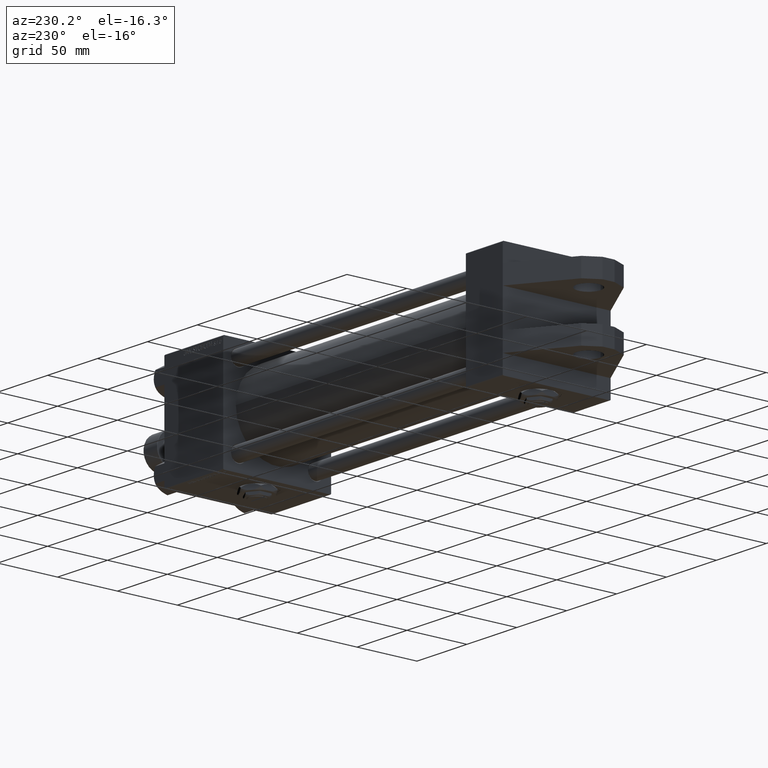
[diagram: clean part render]
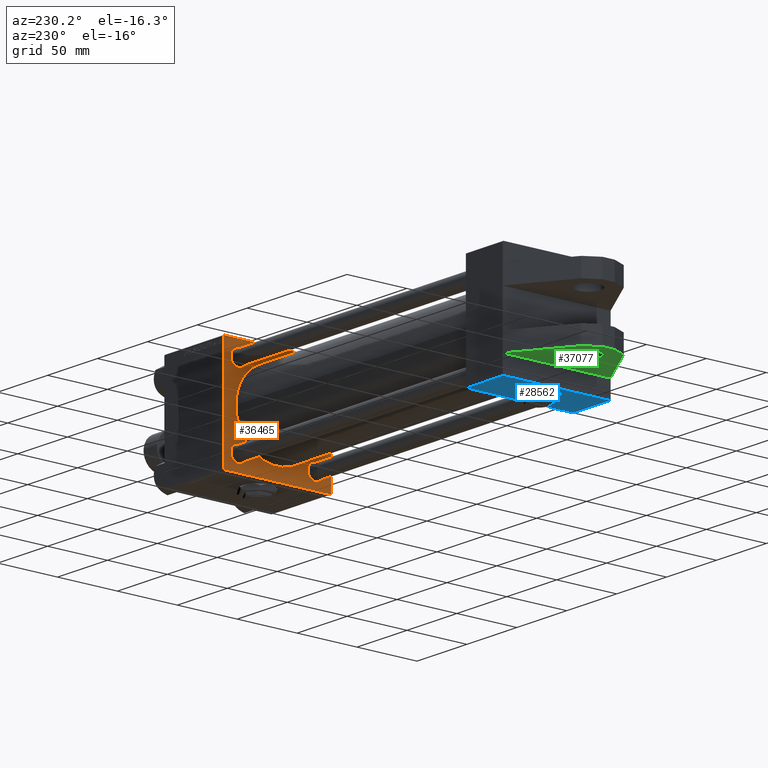
[diagram: same view with three faces highlighted in distinct colors, each labeled with its STEP entity id]
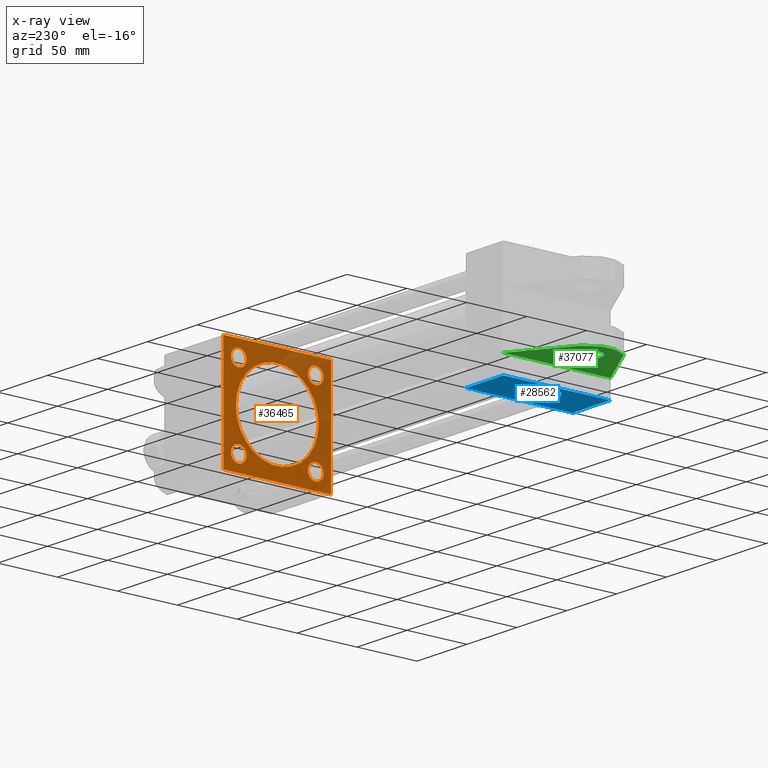
[diagram: x-ray of the same camera — body ghosted, the three highlighted faces saturated]
A machine part, auxiliary view with three faces highlighted in distinct colors.
The next image is the same camera in x-ray (body ghosted, the three faces saturated) — at least one of them is partly hidden behind the body in this view.
Their STEP definitions:

[orange] entity #36465 — the highlighted planar face has unit normal (-1, 0, -0).
#791 = DIRECTION ( 'NONE',  ( 0.000000000000000000, 0.000000000000000000, -1.000000000000000000 ) ) ;
#1135 = EDGE_LOOP ( 'NONE', ( #24275, #50370 ) ) ;
#1155 = ORIENTED_EDGE ( 'NONE', *, *, #47592, .F. ) ;
#1222 = CARTESIAN_POINT ( 'NONE',  ( 279.9999999999999432, 32.14999999999999147, -32.15000000000000568 ) ) ;
#1411 = ORIENTED_EDGE ( 'NONE', *, *, #21410, .T. ) ;
#2640 = FACE_BOUND ( 'NONE', #32008, .T. ) ;
#2700 = DIRECTION ( 'NONE',  ( 1.000000000000000000, 0.000000000000000000, 0.000000000000000000 ) ) ;
#2791 = ORIENTED_EDGE ( 'NONE', *, *, #5754, .T. ) ;
#3052 = ORIENTED_EDGE ( 'NONE', *, *, #34088, .F. ) ;
#3738 = EDGE_CURVE ( 'NONE', #31636, #42507, #24952, .T. ) ;
#3739 = VERTEX_POINT ( 'NONE', #10886 ) ;
#4120 = VECTOR ( 'NONE', #46829, 1000.000000000000114 ) ;
#4992 = DIRECTION ( 'NONE',  ( 1.000000000000000000, 0.000000000000000000, 0.000000000000000000 ) ) ;
#5023 = EDGE_CURVE ( 'NONE', #12674, #17136, #25023, .T. ) ;
#5448 = CARTESIAN_POINT ( 'NONE',  ( 279.9999999999999432, -32.14999999999999147, 38.64999999999994174 ) ) ;
#5754 = EDGE_CURVE ( 'NONE', #25821, #25699, #9710, .T. ) ;
#6375 = VERTEX_POINT ( 'NONE', #52237 ) ;
#6597 = FACE_BOUND ( 'NONE', #38505, .T. ) ;
#7787 = EDGE_CURVE ( 'NONE', #17136, #26427, #24337, .T. ) ;
#8275 = LINE ( 'NONE', #45260, #49695 ) ;
#8710 = AXIS2_PLACEMENT_3D ( 'NONE', #10437, #34735, #23086 ) ;
#8729 = CARTESIAN_POINT ( 'NONE',  ( 279.9999999999999432, -3.469446951953614189E-15, 0.000000000000000000 ) ) ;
#9659 = ORIENTED_EDGE ( 'NONE', *, *, #43957, .T. ) ;
#9710 = CIRCLE ( 'NONE', #31656, 6.499999999999895195 ) ;
#10013 = EDGE_LOOP ( 'NONE', ( #2791, #28618 ) ) ;
#10066 = CIRCLE ( 'NONE', #10933, 34.49999999999999289 ) ;
#10098 = CARTESIAN_POINT ( 'NONE',  ( 279.9999999999999432, -44.74999999999968736, -44.75000000000031264 ) ) ;
#10437 = CARTESIAN_POINT ( 'NONE',  ( 279.9999999999999432, 32.14999999999999147, 32.15000000000000568 ) ) ;
#10470 = EDGE_CURVE ( 'NONE', #25699, #25821, #35201, .T. ) ;
#10573 = DIRECTION ( 'NONE',  ( -1.000000000000000000, 0.000000000000000000, -0.000000000000000000 ) ) ;
#10602 = CIRCLE ( 'NONE', #29950, 6.499999999999888090 ) ;
#10886 = CARTESIAN_POINT ( 'NONE',  ( 279.9999999999999432, -44.99999999999999289, -44.49999999999997158 ) ) ;
#10933 = AXIS2_PLACEMENT_3D ( 'NONE', #8729, #13473, #791 ) ;
#10939 = EDGE_CURVE ( 'NONE', #30506, #13828, #51254, .T. ) ;
#11446 = DIRECTION ( 'NONE',  ( 0.000000000000000000, -1.000000000000000000, 0.000000000000000000 ) ) ;
#11507 = EDGE_LOOP ( 'NONE', ( #9659, #1411, #1155, #22121, #3052, #40864, #42738, #30978 ) ) ;
#11762 = VERTEX_POINT ( 'NONE', #31645 ) ;
#12674 = VERTEX_POINT ( 'NONE', #32947 ) ;
#12719 = CARTESIAN_POINT ( 'NONE',  ( 279.9999999999999432, -32.15000000000001279, -32.15000000000000568 ) ) ;
#12820 = CARTESIAN_POINT ( 'NONE',  ( 279.9999999999999432, -32.14999999999999147, 25.65000000000004121 ) ) ;
#12899 = CARTESIAN_POINT ( 'NONE',  ( 279.9999999999999432, 44.74999999999997158, 44.74999999999997158 ) ) ;
#13380 = LINE ( 'NONE', #45360, #18926 ) ;
#13473 = DIRECTION ( 'NONE',  ( 1.000000000000000000, 0.000000000000000000, 0.000000000000000000 ) ) ;
#13526 = CARTESIAN_POINT ( 'NONE',  ( 279.9999999999999432, 45.00000000000001421, 44.49999999999994316 ) ) ;
#13642 = DIRECTION ( 'NONE',  ( 0.000000000000000000, 0.000000000000000000, 1.000000000000000000 ) ) ;
#13828 = VERTEX_POINT ( 'NONE', #12820 ) ;
#14120 = AXIS2_PLACEMENT_3D ( 'NONE', #25507, #33716, #13642 ) ;
#14791 = PLANE ( 'NONE',  #37546 ) ;
#15049 = FACE_BOUND ( 'NONE', #35346, .T. ) ;
#15557 = CARTESIAN_POINT ( 'NONE',  ( 279.9999999999999432, -32.15000000000001279, -38.64999999999989910 ) ) ;
#15944 = CARTESIAN_POINT ( 'NONE',  ( 279.9999999999999432, 32.14999999999999147, -25.65000000000011582 ) ) ;
#16527 = AXIS2_PLACEMENT_3D ( 'NONE', #19331, #35452, #18298 ) ;
#16627 = DIRECTION ( 'NONE',  ( 0.000000000000000000, 0.000000000000000000, 1.000000000000000000 ) ) ;
#17136 = VERTEX_POINT ( 'NONE', #13526 ) ;
#17208 = CARTESIAN_POINT ( 'NONE',  ( 279.9999999999999432, 45.00000000000001421, 45.00000000000000000 ) ) ;
#17428 = EDGE_CURVE ( 'NONE', #47007, #23571, #52277, .T. ) ;
#18298 = DIRECTION ( 'NONE',  ( 0.000000000000000000, 0.000000000000000000, 1.000000000000000000 ) ) ;
#18926 = VECTOR ( 'NONE', #37416, 1000.000000000000000 ) ;
#19331 = CARTESIAN_POINT ( 'NONE',  ( 279.9999999999999432, 32.14999999999999147, 32.15000000000000568 ) ) ;
#20281 = DIRECTION ( 'NONE',  ( -0.000000000000000000, 0.7071067811865474617, 0.7071067811865474617 ) ) ;
#20832 = AXIS2_PLACEMENT_3D ( 'NONE', #25894, #30398, #46542 ) ;
#21410 = EDGE_CURVE ( 'NONE', #6375, #3739, #42586, .T. ) ;
#21687 = AXIS2_PLACEMENT_3D ( 'NONE', #32734, #4992, #16627 ) ;
#22121 = ORIENTED_EDGE ( 'NONE', *, *, #17428, .T. ) ;
#22528 = VECTOR ( 'NONE', #11446, 1000.000000000000000 ) ;
#22704 = FACE_BOUND ( 'NONE', #10013, .T. ) ;
#23086 = DIRECTION ( 'NONE',  ( 0.000000000000000000, 0.000000000000000000, 1.000000000000000000 ) ) ;
#23287 = CARTESIAN_POINT ( 'NONE',  ( 279.9999999999999432, 44.75000000000000000, -44.75000000000000000 ) ) ;
#23362 = CIRCLE ( 'NONE', #20832, 6.499999999999950262 ) ;
#23571 = VERTEX_POINT ( 'NONE', #44655 ) ;
#24086 = LINE ( 'NONE', #36256, #22528 ) ;
#24215 = AXIS2_PLACEMENT_3D ( 'NONE', #29485, #46162, #46426 ) ;
#24275 = ORIENTED_EDGE ( 'NONE', *, *, #48880, .T. ) ;
#24337 = LINE ( 'NONE', #17208, #49463 ) ;
#24826 = CARTESIAN_POINT ( 'NONE',  ( 279.9999999999999432, 7.555845051047534515E-16, -34.49999999999999289 ) ) ;
#24839 = DIRECTION ( 'NONE',  ( 0.000000000000000000, 0.000000000000000000, 1.000000000000000000 ) ) ;
#24952 = CIRCLE ( 'NONE', #16527, 6.499999999999950262 ) ;
#25023 = LINE ( 'NONE', #12899, #51060 ) ;
#25110 = DIRECTION ( 'NONE',  ( 0.000000000000000000, 0.000000000000000000, -1.000000000000000000 ) ) ;
#25507 = CARTESIAN_POINT ( 'NONE',  ( 279.9999999999999432, -32.14999999999999147, 32.14999999999999147 ) ) ;
#25699 = VERTEX_POINT ( 'NONE', #15557 ) ;
#25821 = VERTEX_POINT ( 'NONE', #35049 ) ;
#25894 = CARTESIAN_POINT ( 'NONE',  ( 279.9999999999999432, -32.14999999999999147, 32.14999999999999147 ) ) ;
#26375 = CIRCLE ( 'NONE', #8710, 6.499999999999950262 ) ;
#26427 = VERTEX_POINT ( 'NONE', #30623 ) ;
#27569 = AXIS2_PLACEMENT_3D ( 'NONE', #1222, #50837, #30727 ) ;
#27762 = ORIENTED_EDGE ( 'NONE', *, *, #30962, .T. ) ;
#28618 = ORIENTED_EDGE ( 'NONE', *, *, #10470, .T. ) ;
#29485 = CARTESIAN_POINT ( 'NONE',  ( 279.9999999999999432, -3.469446951953614189E-15, 0.000000000000000000 ) ) ;
#29950 = AXIS2_PLACEMENT_3D ( 'NONE', #51062, #2700, #35191 ) ;
#30398 = DIRECTION ( 'NONE',  ( 1.000000000000000000, 0.000000000000000000, 0.000000000000000000 ) ) ;
#30506 = VERTEX_POINT ( 'NONE', #5448 ) ;
#30623 = CARTESIAN_POINT ( 'NONE',  ( 279.9999999999999432, 45.00000000000001421, -44.49999999999997158 ) ) ;
#30727 = DIRECTION ( 'NONE',  ( 0.000000000000000000, 0.000000000000000000, 1.000000000000000000 ) ) ;
#30962 = EDGE_CURVE ( 'NONE', #42507, #31636, #26375, .T. ) ;
#30978 = ORIENTED_EDGE ( 'NONE', *, *, #47831, .T. ) ;
#31219 = LINE ( 'NONE', #23287, #4120 ) ;
#31416 = CARTESIAN_POINT ( 'NONE',  ( 279.9999999999999432, 0.000000000000000000, 0.000000000000000000 ) ) ;
#31489 = VERTEX_POINT ( 'NONE', #24826 ) ;
#31636 = VERTEX_POINT ( 'NONE', #42289 ) ;
#31645 = CARTESIAN_POINT ( 'NONE',  ( 279.9999999999999432, 32.14999999999999147, -38.64999999999989200 ) ) ;
#31656 = AXIS2_PLACEMENT_3D ( 'NONE', #12719, #32789, #24839 ) ;
#32008 = EDGE_LOOP ( 'NONE', ( #32979, #47281 ) ) ;
#32177 = CARTESIAN_POINT ( 'NONE',  ( 279.9999999999999432, -44.75000000000001421, 44.75000000000001421 ) ) ;
#32734 = CARTESIAN_POINT ( 'NONE',  ( 279.9999999999999432, -32.15000000000001279, -32.15000000000000568 ) ) ;
#32789 = DIRECTION ( 'NONE',  ( 1.000000000000000000, 0.000000000000000000, 0.000000000000000000 ) ) ;
#32947 = CARTESIAN_POINT ( 'NONE',  ( 279.9999999999999432, 44.49999999999995737, 45.00000000000000000 ) ) ;
#32979 = ORIENTED_EDGE ( 'NONE', *, *, #36230, .T. ) ;
#33716 = DIRECTION ( 'NONE',  ( 1.000000000000000000, 0.000000000000000000, 0.000000000000000000 ) ) ;
#34088 = EDGE_CURVE ( 'NONE', #12674, #23571, #13380, .T. ) ;
#34735 = DIRECTION ( 'NONE',  ( 1.000000000000000000, 0.000000000000000000, 0.000000000000000000 ) ) ;
#35049 = CARTESIAN_POINT ( 'NONE',  ( 279.9999999999999432, -32.15000000000001279, -25.65000000000010871 ) ) ;
#35191 = DIRECTION ( 'NONE',  ( 0.000000000000000000, 0.000000000000000000, 1.000000000000000000 ) ) ;
#35201 = CIRCLE ( 'NONE', #21687, 6.499999999999895195 ) ;
#35346 = EDGE_LOOP ( 'NONE', ( #50887, #52251 ) ) ;
#35452 = DIRECTION ( 'NONE',  ( 1.000000000000000000, 0.000000000000000000, 0.000000000000000000 ) ) ;
#36230 = EDGE_CURVE ( 'NONE', #48589, #11762, #10602, .T. ) ;
#36256 = CARTESIAN_POINT ( 'NONE',  ( 279.9999999999999432, 45.00000000000001421, -45.00000000000000000 ) ) ;
#36465 = ADVANCED_FACE ( 'NONE', ( #15049, #6597, #2640, #22704, #50997, #51780 ), #14791, .T. ) ;
#36861 = CIRCLE ( 'NONE', #27569, 6.499999999999888090 ) ;
#37046 = CARTESIAN_POINT ( 'NONE',  ( 279.9999999999999432, -3.469446951953614189E-15, 34.49999999999999289 ) ) ;
#37316 = DIRECTION ( 'NONE',  ( 0.000000000000000000, 7.709882115452478166E-17, -1.000000000000000000 ) ) ;
#37416 = DIRECTION ( 'NONE',  ( 0.000000000000000000, -1.000000000000000000, -1.541976423090495140E-16 ) ) ;
#37546 = AXIS2_PLACEMENT_3D ( 'NONE', #31416, #10573, #38827 ) ;
#37950 = ORIENTED_EDGE ( 'NONE', *, *, #3738, .T. ) ;
#38505 = EDGE_LOOP ( 'NONE', ( #37950, #27762 ) ) ;
#38827 = DIRECTION ( 'NONE',  ( -0.000000000000000000, 0.000000000000000000, 1.000000000000000000 ) ) ;
#40864 = ORIENTED_EDGE ( 'NONE', *, *, #5023, .T. ) ;
#42289 = CARTESIAN_POINT ( 'NONE',  ( 279.9999999999999432, 32.14999999999999147, 38.64999999999995595 ) ) ;
#42507 = VERTEX_POINT ( 'NONE', #44309 ) ;
#42586 = LINE ( 'NONE', #10098, #45574 ) ;
#42738 = ORIENTED_EDGE ( 'NONE', *, *, #7787, .T. ) ;
#42842 = CIRCLE ( 'NONE', #24215, 34.49999999999999289 ) ;
#43260 = EDGE_CURVE ( 'NONE', #13828, #30506, #23362, .T. ) ;
#43832 = EDGE_CURVE ( 'NONE', #11762, #48589, #36861, .T. ) ;
#43957 = EDGE_CURVE ( 'NONE', #52041, #6375, #24086, .T. ) ;
#44309 = CARTESIAN_POINT ( 'NONE',  ( 279.9999999999999432, 32.14999999999999147, 25.65000000000005542 ) ) ;
#44655 = CARTESIAN_POINT ( 'NONE',  ( 279.9999999999999432, -44.50000000000002842, 44.99999999999998579 ) ) ;
#44729 = EDGE_CURVE ( 'NONE', #31489, #50751, #42842, .T. ) ;
#45141 = DIRECTION ( 'NONE',  ( 0.000000000000000000, 0.7071067811865474617, -0.7071067811865474617 ) ) ;
#45260 = CARTESIAN_POINT ( 'NONE',  ( 279.9999999999999432, -45.00000000000000000, 44.99999999999998579 ) ) ;
#45360 = CARTESIAN_POINT ( 'NONE',  ( 279.9999999999999432, 45.00000000000001421, 45.00000000000000000 ) ) ;
#45574 = VECTOR ( 'NONE', #51042, 999.9999999999998863 ) ;
#46162 = DIRECTION ( 'NONE',  ( 1.000000000000000000, 0.000000000000000000, 0.000000000000000000 ) ) ;
#46426 = DIRECTION ( 'NONE',  ( 0.000000000000000000, 0.000000000000000000, -1.000000000000000000 ) ) ;
#46542 = DIRECTION ( 'NONE',  ( 0.000000000000000000, 0.000000000000000000, 1.000000000000000000 ) ) ;
#46829 = DIRECTION ( 'NONE',  ( -0.000000000000000000, -0.7071067811865474617, -0.7071067811865474617 ) ) ;
#47007 = VERTEX_POINT ( 'NONE', #50202 ) ;
#47281 = ORIENTED_EDGE ( 'NONE', *, *, #43832, .T. ) ;
#47592 = EDGE_CURVE ( 'NONE', #47007, #3739, #8275, .T. ) ;
#47831 = EDGE_CURVE ( 'NONE', #26427, #52041, #31219, .T. ) ;
#48589 = VERTEX_POINT ( 'NONE', #15944 ) ;
#48880 = EDGE_CURVE ( 'NONE', #50751, #31489, #10066, .T. ) ;
#49463 = VECTOR ( 'NONE', #25110, 1000.000000000000000 ) ;
#49695 = VECTOR ( 'NONE', #37316, 1000.000000000000000 ) ;
#50202 = CARTESIAN_POINT ( 'NONE',  ( 279.9999999999999432, -45.00000000000000000, 44.50000000000004263 ) ) ;
#50370 = ORIENTED_EDGE ( 'NONE', *, *, #44729, .T. ) ;
#50751 = VERTEX_POINT ( 'NONE', #37046 ) ;
#50837 = DIRECTION ( 'NONE',  ( 1.000000000000000000, 0.000000000000000000, 0.000000000000000000 ) ) ;
#50887 = ORIENTED_EDGE ( 'NONE', *, *, #10939, .T. ) ;
#50933 = CARTESIAN_POINT ( 'NONE',  ( 279.9999999999999432, 44.50000000000001421, -45.00000000000000000 ) ) ;
#50997 = FACE_BOUND ( 'NONE', #1135, .T. ) ;
#51042 = DIRECTION ( 'NONE',  ( 0.000000000000000000, -0.7071067811865525687, 0.7071067811865425767 ) ) ;
#51060 = VECTOR ( 'NONE', #45141, 1000.000000000000114 ) ;
#51062 = CARTESIAN_POINT ( 'NONE',  ( 279.9999999999999432, 32.14999999999999147, -32.15000000000000568 ) ) ;
#51254 = CIRCLE ( 'NONE', #14120, 6.499999999999950262 ) ;
#51516 = VECTOR ( 'NONE', #20281, 1000.000000000000114 ) ;
#51780 = FACE_OUTER_BOUND ( 'NONE', #11507, .T. ) ;
#52041 = VERTEX_POINT ( 'NONE', #50933 ) ;
#52237 = CARTESIAN_POINT ( 'NONE',  ( 279.9999999999999432, -44.49999999999995737, -45.00000000000000000 ) ) ;
#52251 = ORIENTED_EDGE ( 'NONE', *, *, #43260, .T. ) ;
#52277 = LINE ( 'NONE', #32177, #51516 ) ;

[blue] entity #28562 — the highlighted planar face has unit normal (0, 0, -1).
#249 = DIRECTION ( 'NONE',  ( 0.000000000000000000, 0.000000000000000000, -1.000000000000000000 ) ) ;
#644 = ORIENTED_EDGE ( 'NONE', *, *, #11660, .F. ) ;
#1897 = CARTESIAN_POINT ( 'NONE',  ( 37.00000000000000000, 44.99999999999998579, 44.50000000000001421 ) ) ;
#5578 = VECTOR ( 'NONE', #36911, 1000.000000000000000 ) ;
#5884 = ORIENTED_EDGE ( 'NONE', *, *, #35574, .T. ) ;
#6780 = FACE_OUTER_BOUND ( 'NONE', #37752, .T. ) ;
#7124 = CARTESIAN_POINT ( 'NONE',  ( 18.50000000000000000, 44.99999999999998579, 0.000000000000000000 ) ) ;
#7385 = CARTESIAN_POINT ( 'NONE',  ( 0.000000000000000000, 44.99999999999998579, 44.50000000000001421 ) ) ;
#7929 = LINE ( 'NONE', #36450, #12445 ) ;
#8483 = EDGE_CURVE ( 'NONE', #30670, #37346, #24221, .T. ) ;
#8633 = AXIS2_PLACEMENT_3D ( 'NONE', #42984, #50911, #14707 ) ;
#9048 = CARTESIAN_POINT ( 'NONE',  ( 37.00000000000000000, 44.99999999999998579, 44.50000000000001421 ) ) ;
#10746 = PLANE ( 'NONE',  #8633 ) ;
#11348 = DIRECTION ( 'NONE',  ( 0.000000000000000000, 0.000000000000000000, 1.000000000000000000 ) ) ;
#11660 = EDGE_CURVE ( 'NONE', #28869, #19278, #31011, .T. ) ;
#12296 = EDGE_CURVE ( 'NONE', #36567, #37346, #7929, .T. ) ;
#12445 = VECTOR ( 'NONE', #249, 1000.000000000000000 ) ;
#14707 = DIRECTION ( 'NONE',  ( 0.000000000000000000, -0.000000000000000000, 1.000000000000000000 ) ) ;
#17421 = ORIENTED_EDGE ( 'NONE', *, *, #36573, .F. ) ;
#19278 = VERTEX_POINT ( 'NONE', #32771 ) ;
#20526 = EDGE_CURVE ( 'NONE', #48707, #30670, #31454, .T. ) ;
#21151 = CARTESIAN_POINT ( 'NONE',  ( 0.000000000000000000, 44.99999999999998579, -44.49999999999995737 ) ) ;
#21799 = ORIENTED_EDGE ( 'NONE', *, *, #8483, .T. ) ;
#22628 = CARTESIAN_POINT ( 'NONE',  ( 37.00000000000000000, 44.99999999999998579, -44.49999999999995737 ) ) ;
#22770 = VECTOR ( 'NONE', #47338, 1000.000000000000000 ) ;
#23521 = CARTESIAN_POINT ( 'NONE',  ( 37.00000000000000000, 44.99999999999998579, 45.00000000000001421 ) ) ;
#24221 = LINE ( 'NONE', #40869, #5578 ) ;
#26232 = EDGE_LOOP ( 'NONE', ( #17421, #644 ) ) ;
#26505 = CARTESIAN_POINT ( 'NONE',  ( 18.50000000000000355, 44.99999999999998579, -15.00000000000000178 ) ) ;
#27437 = DIRECTION ( 'NONE',  ( 0.000000000000000000, 1.000000000000000000, 0.000000000000000000 ) ) ;
#27910 = ORIENTED_EDGE ( 'NONE', *, *, #20526, .T. ) ;
#28205 = DIRECTION ( 'NONE',  ( 0.000000000000000000, 1.000000000000000000, 0.000000000000000000 ) ) ;
#28562 = ADVANCED_FACE ( 'NONE', ( #47475, #6780 ), #10746, .T. ) ;
#28869 = VERTEX_POINT ( 'NONE', #26505 ) ;
#30670 = VERTEX_POINT ( 'NONE', #22628 ) ;
#31011 = CIRCLE ( 'NONE', #43706, 15.00000000000000178 ) ;
#31454 = LINE ( 'NONE', #23521, #22770 ) ;
#32194 = CARTESIAN_POINT ( 'NONE',  ( 18.50000000000000000, 44.99999999999998579, 0.000000000000000000 ) ) ;
#32771 = CARTESIAN_POINT ( 'NONE',  ( 18.50000000000000000, 44.99999999999998579, 15.00000000000000178 ) ) ;
#35574 = EDGE_CURVE ( 'NONE', #36567, #48707, #45244, .T. ) ;
#36450 = CARTESIAN_POINT ( 'NONE',  ( 0.000000000000000000, 44.99999999999998579, 45.00000000000001421 ) ) ;
#36567 = VERTEX_POINT ( 'NONE', #7385 ) ;
#36573 = EDGE_CURVE ( 'NONE', #19278, #28869, #38297, .T. ) ;
#36911 = DIRECTION ( 'NONE',  ( -1.000000000000000000, 0.000000000000000000, 0.000000000000000000 ) ) ;
#37346 = VERTEX_POINT ( 'NONE', #21151 ) ;
#37752 = EDGE_LOOP ( 'NONE', ( #27910, #21799, #50896, #5884 ) ) ;
#38297 = CIRCLE ( 'NONE', #41694, 15.00000000000000178 ) ;
#39082 = DIRECTION ( 'NONE',  ( 0.000000000000000000, 0.000000000000000000, 1.000000000000000000 ) ) ;
#40869 = CARTESIAN_POINT ( 'NONE',  ( 37.00000000000000000, 44.99999999999998579, -44.49999999999998579 ) ) ;
#41694 = AXIS2_PLACEMENT_3D ( 'NONE', #7124, #27437, #39082 ) ;
#42984 = CARTESIAN_POINT ( 'NONE',  ( 37.00000000000000000, 44.99999999999998579, 45.00000000000001421 ) ) ;
#43706 = AXIS2_PLACEMENT_3D ( 'NONE', #32194, #28205, #11348 ) ;
#45244 = LINE ( 'NONE', #9048, #51946 ) ;
#47077 = DIRECTION ( 'NONE',  ( 1.000000000000000000, 0.000000000000000000, 0.000000000000000000 ) ) ;
#47338 = DIRECTION ( 'NONE',  ( 0.000000000000000000, 0.000000000000000000, -1.000000000000000000 ) ) ;
#47475 = FACE_BOUND ( 'NONE', #26232, .T. ) ;
#48707 = VERTEX_POINT ( 'NONE', #1897 ) ;
#50896 = ORIENTED_EDGE ( 'NONE', *, *, #12296, .F. ) ;
#50911 = DIRECTION ( 'NONE',  ( -0.000000000000000000, 1.000000000000000000, 0.000000000000000000 ) ) ;
#51946 = VECTOR ( 'NONE', #47077, 1000.000000000000000 ) ;

[green] entity #37077 — the highlighted planar face has unit normal (0, 0, -1).
#63 = ORIENTED_EDGE ( 'NONE', *, *, #34199, .T. ) ;
#118 = DIRECTION ( 'NONE',  ( -0.4226182617406930020, -0.000000000000000000, 0.9063077870366529343 ) ) ;
#1165 = CARTESIAN_POINT ( 'NONE',  ( 0.000000000000000000, 30.00000000000000355, 45.00000000000001421 ) ) ;
#1921 = DIRECTION ( 'NONE',  ( 0.8478744008358545248, 0.000000000000000000, 0.5301971335335947666 ) ) ;
#2551 = DIRECTION ( 'NONE',  ( -0.8595155407125480984, -0.000000000000000000, 0.5111096117992853793 ) ) ;
#2614 = VERTEX_POINT ( 'NONE', #22332 ) ;
#2671 = LINE ( 'NONE', #2930, #31692 ) ;
#2930 = CARTESIAN_POINT ( 'NONE',  ( -52.00000000000000711, 30.00000000000000000, 5.000000000000000000 ) ) ;
#3273 = EDGE_CURVE ( 'NONE', #7492, #51360, #2671, .T. ) ;
#4086 = CARTESIAN_POINT ( 'NONE',  ( -52.00000000000000711, 30.00000000000000000, -5.000000000000000000 ) ) ;
#4793 = VERTEX_POINT ( 'NONE', #41033 ) ;
#5443 = ORIENTED_EDGE ( 'NONE', *, *, #12789, .T. ) ;
#5609 = FACE_OUTER_BOUND ( 'NONE', #12474, .T. ) ;
#5840 = ORIENTED_EDGE ( 'NONE', *, *, #3273, .T. ) ;
#5882 = CARTESIAN_POINT ( 'NONE',  ( -44.91602078046192048, 30.00000000000000000, 16.91288539427591431 ) ) ;
#7492 = VERTEX_POINT ( 'NONE', #44257 ) ;
#8302 = VECTOR ( 'NONE', #2551, 999.9999999999998863 ) ;
#9272 = EDGE_LOOP ( 'NONE', ( #10530, #29959 ) ) ;
#10530 = ORIENTED_EDGE ( 'NONE', *, *, #37290, .F. ) ;
#11657 = CARTESIAN_POINT ( 'NONE',  ( -32.00000000000000000, 30.00000000000000000, -10.00000000000000000 ) ) ;
#11927 = DIRECTION ( 'NONE',  ( 0.000000000000000000, -0.000000000000000000, 1.000000000000000000 ) ) ;
#12474 = EDGE_LOOP ( 'NONE', ( #5840, #30128, #29346, #5443, #63, #38522 ) ) ;
#12789 = EDGE_CURVE ( 'NONE', #2614, #35990, #42716, .T. ) ;
#13807 = FACE_BOUND ( 'NONE', #9272, .T. ) ;
#14318 = VERTEX_POINT ( 'NONE', #11657 ) ;
#14914 = LINE ( 'NONE', #31015, #48875 ) ;
#14927 = AXIS2_PLACEMENT_3D ( 'NONE', #24329, #43677, #23829 ) ;
#14966 = CARTESIAN_POINT ( 'NONE',  ( -46.14251089227400371, 30.00000000000000000, -17.56142592832800631 ) ) ;
#15950 = EDGE_CURVE ( 'NONE', #4793, #7492, #43022, .T. ) ;
#16150 = DIRECTION ( 'NONE',  ( 0.000000000000000000, 0.000000000000000000, 1.000000000000000000 ) ) ;
#16170 = VERTEX_POINT ( 'NONE', #21550 ) ;
#16386 = AXIS2_PLACEMENT_3D ( 'NONE', #17778, #50019, #11927 ) ;
#17778 = CARTESIAN_POINT ( 'NONE',  ( 0.000000000000000000, 30.00000000000000000, 0.000000000000000000 ) ) ;
#18447 = DIRECTION ( 'NONE',  ( 0.000000000000000000, 0.000000000000000000, 1.000000000000000000 ) ) ;
#20012 = CIRCLE ( 'NONE', #14927, 10.00000000000000000 ) ;
#21550 = CARTESIAN_POINT ( 'NONE',  ( -32.00000000000000000, 30.00000000000000000, 10.00000000000000000 ) ) ;
#21728 = PLANE ( 'NONE',  #16386 ) ;
#22332 = CARTESIAN_POINT ( 'NONE',  ( 0.000000000000000000, 30.00000000000000000, -45.00000000000000000 ) ) ;
#23829 = DIRECTION ( 'NONE',  ( 0.000000000000000000, 0.000000000000000000, 1.000000000000000000 ) ) ;
#24329 = CARTESIAN_POINT ( 'NONE',  ( -32.00000000000000000, 30.00000000000000000, 0.000000000000000000 ) ) ;
#29346 = ORIENTED_EDGE ( 'NONE', *, *, #48515, .T. ) ;
#29864 = AXIS2_PLACEMENT_3D ( 'NONE', #32255, #32778, #16150 ) ;
#29959 = ORIENTED_EDGE ( 'NONE', *, *, #43043, .F. ) ;
#30128 = ORIENTED_EDGE ( 'NONE', *, *, #40699, .T. ) ;
#31015 = CARTESIAN_POINT ( 'NONE',  ( 0.000000000000000000, 30.00000000000000000, 45.00000000000000000 ) ) ;
#31692 = VECTOR ( 'NONE', #51297, 999.9999999999998863 ) ;
#32255 = CARTESIAN_POINT ( 'NONE',  ( -32.00000000000000000, 30.00000000000000000, 0.000000000000000000 ) ) ;
#32778 = DIRECTION ( 'NONE',  ( 0.000000000000000000, 1.000000000000000000, 0.000000000000000000 ) ) ;
#34199 = EDGE_CURVE ( 'NONE', #35990, #4793, #40278, .T. ) ;
#34225 = VECTOR ( 'NONE', #1921, 1000.000000000000114 ) ;
#35990 = VERTEX_POINT ( 'NONE', #43309 ) ;
#36644 = VECTOR ( 'NONE', #118, 1000.000000000000227 ) ;
#37077 = ADVANCED_FACE ( 'NONE', ( #5609, #13807 ), #21728, .T. ) ;
#37290 = EDGE_CURVE ( 'NONE', #14318, #16170, #45061, .T. ) ;
#38522 = ORIENTED_EDGE ( 'NONE', *, *, #15950, .T. ) ;
#39466 = DIRECTION ( 'NONE',  ( 0.000000000000000000, 0.000000000000000000, -1.000000000000000000 ) ) ;
#40278 = LINE ( 'NONE', #4086, #36644 ) ;
#40699 = EDGE_CURVE ( 'NONE', #51360, #45510, #42096, .T. ) ;
#41033 = CARTESIAN_POINT ( 'NONE',  ( -52.00000000000000711, 30.00000000000000000, -5.000000000000000000 ) ) ;
#42096 = LINE ( 'NONE', #5882, #34225 ) ;
#42716 = LINE ( 'NONE', #14966, #8302 ) ;
#43022 = LINE ( 'NONE', #47507, #51398 ) ;
#43043 = EDGE_CURVE ( 'NONE', #16170, #14318, #20012, .T. ) ;
#43309 = CARTESIAN_POINT ( 'NONE',  ( -46.14251089227400371, 30.00000000000000000, -17.56142592832800631 ) ) ;
#43677 = DIRECTION ( 'NONE',  ( 0.000000000000000000, 1.000000000000000000, 0.000000000000000000 ) ) ;
#44257 = CARTESIAN_POINT ( 'NONE',  ( -52.00000000000000711, 30.00000000000000000, 5.000000000000000000 ) ) ;
#45061 = CIRCLE ( 'NONE', #29864, 10.00000000000000000 ) ;
#45510 = VERTEX_POINT ( 'NONE', #1165 ) ;
#47507 = CARTESIAN_POINT ( 'NONE',  ( -52.00000000000000711, 30.00000000000000000, -5.000000000000000000 ) ) ;
#48515 = EDGE_CURVE ( 'NONE', #45510, #2614, #14914, .T. ) ;
#48875 = VECTOR ( 'NONE', #39466, 1000.000000000000000 ) ;
#50019 = DIRECTION ( 'NONE',  ( -0.000000000000000000, 1.000000000000000000, 0.000000000000000000 ) ) ;
#51297 = DIRECTION ( 'NONE',  ( 0.5111096117992851573, 0.000000000000000000, 0.8595155407125482094 ) ) ;
#51328 = CARTESIAN_POINT ( 'NONE',  ( -44.91602078046192048, 30.00000000000000000, 16.91288539427591431 ) ) ;
#51360 = VERTEX_POINT ( 'NONE', #51328 ) ;
#51398 = VECTOR ( 'NONE', #18447, 1000.000000000000000 ) ;